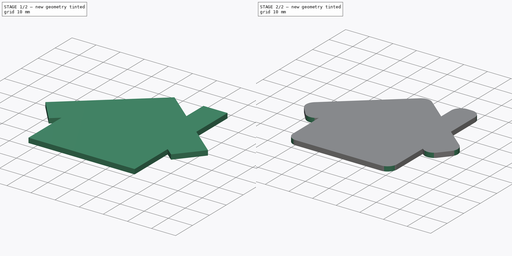
[diagram: build sequence overview — one tinted view per stage of 2, left to right]
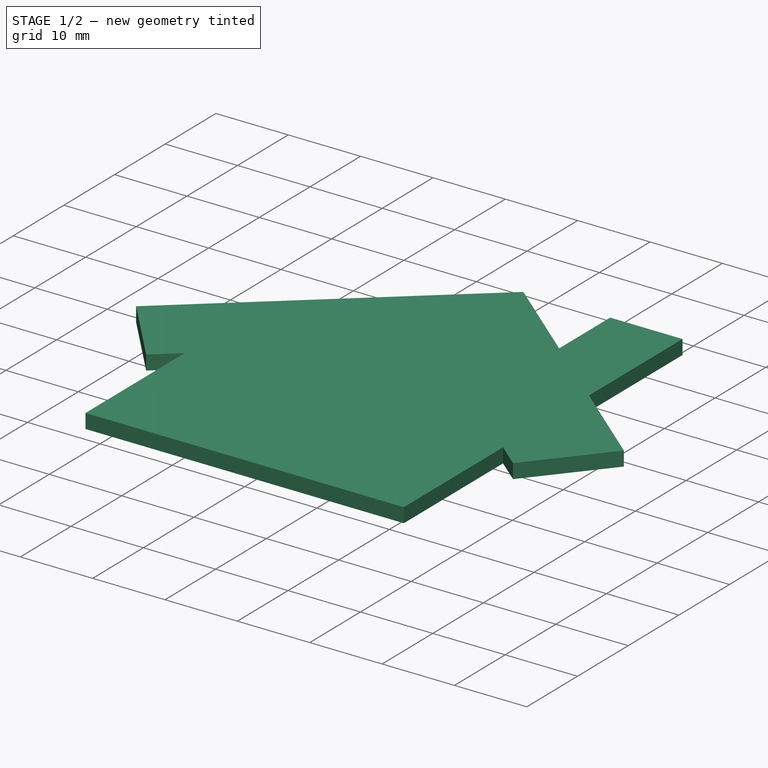
[diagram: stage 1 of 2 — iso view after this stage's code; geometry added in this stage tinted green]
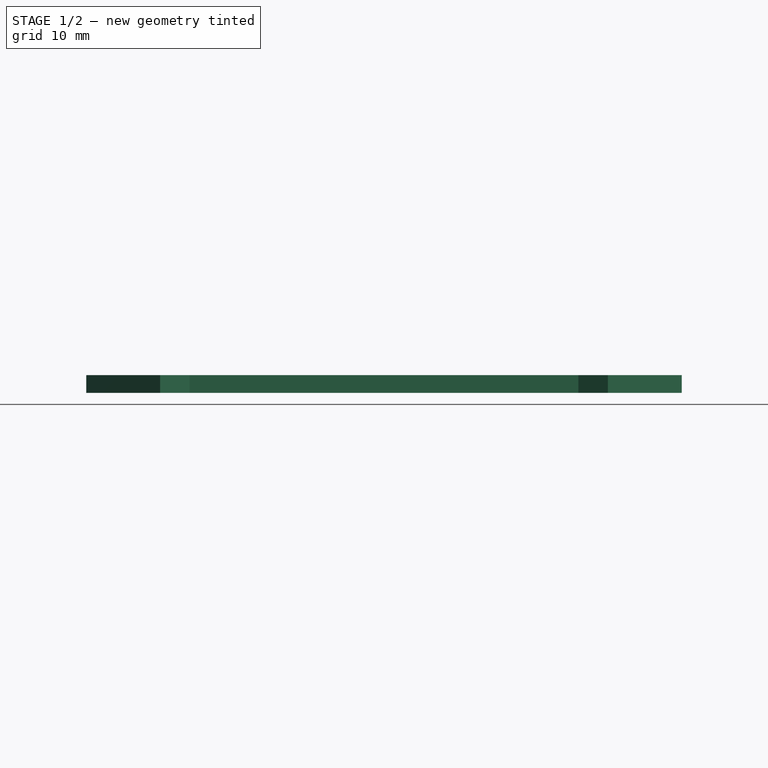
[diagram: stage 1 of 2 — front view after this stage's code; geometry added in this stage tinted green]
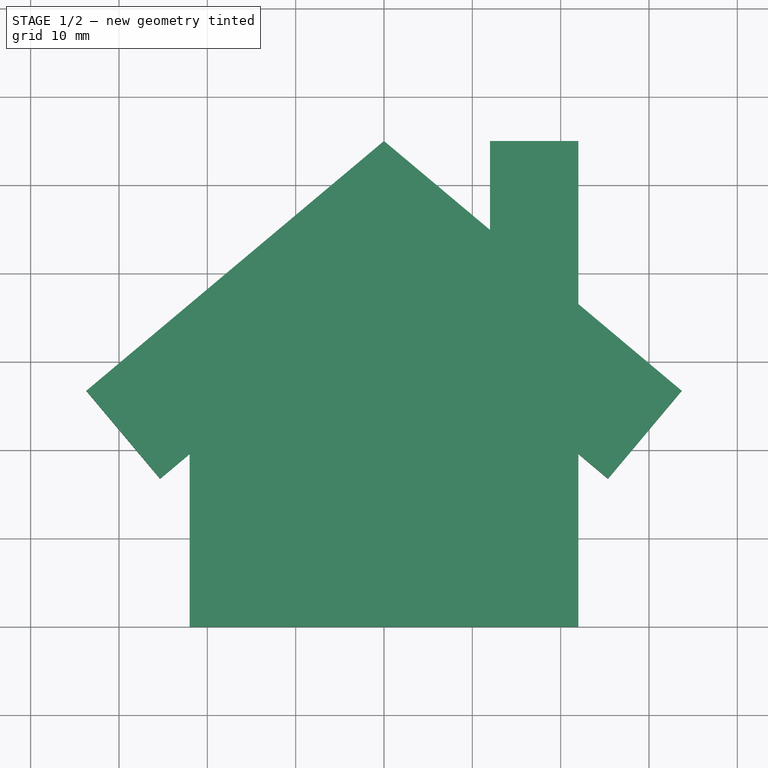
[diagram: stage 1 of 2 — top view after this stage's code; geometry added in this stage tinted green]
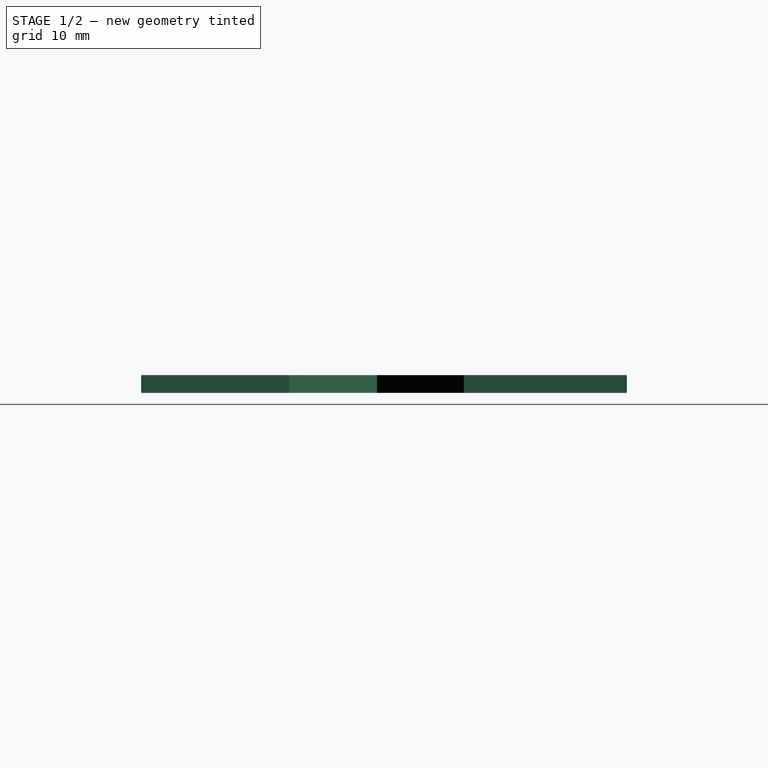
[diagram: stage 1 of 2 — right view after this stage's code; geometry added in this stage tinted green]
FCSTD DOCUMENT  (FreeCAD 0.20R29603 (Git))
Label: house-keychain
License: All rights reserved
LicenseURL: http://en.wikipedia.org/wiki/All_rights_reserved
objects: Sketcher::SketchObject×1, PartDesign::Pad×1, PartDesign::Fillet×1, PartDesign::Body×1
note: 6 computed .brp shape members not serialized (recipe doc carries the construction recipe); baked Part::Feature solids carry a one-line shape summary decoded from their .brp

FEATURE [Sketcher::SketchObject] Sketch
  FullyConstrained = true
  MapMode = 5
  Support = -> [XY_Plane]
  sketch-geometry (13):
    g0: LineSegment StartX=-22 StartY=0 StartZ=0 EndX=22 EndY=0 EndZ=0
    g1: LineSegment StartX=22 StartY=0 StartZ=0 EndX=22 EndY=19.5695 EndZ=0
    g2: LineSegment StartX=0 StartY=55 StartZ=0 EndX=-33.706 EndY=26.7173 EndZ=0
    g3: LineSegment StartX=-22 StartY=19.5695 StartZ=0 EndX=-22 EndY=0 EndZ=0
    g4: LineSegment StartX=-33.706 StartY=26.7173 StartZ=0 EndX=-25.3497 EndY=16.7588 EndZ=0
    g5: LineSegment StartX=-25.3497 StartY=16.7588 StartZ=0 EndX=-22 EndY=19.5695 EndZ=0
    g6: LineSegment StartX=22 StartY=19.5695 StartZ=0 EndX=25.3497 EndY=16.7588 EndZ=0
    g7: LineSegment StartX=25.3497 StartY=16.7588 StartZ=0 EndX=33.706 EndY=26.7173 EndZ=0
    g8: LineSegment StartX=12 StartY=44.9308 StartZ=0 EndX=12 EndY=55 EndZ=0
    g9: LineSegment StartX=12 StartY=55 StartZ=0 EndX=22 EndY=55 EndZ=0
    g10: LineSegment StartX=22 StartY=55 StartZ=0 EndX=22 EndY=36.5398 EndZ=0
    g11: LineSegment StartX=0 StartY=55 StartZ=0 EndX=12 EndY=44.9308 EndZ=0
    g12: LineSegment StartX=22 StartY=36.5398 StartZ=0 EndX=33.706 EndY=26.7173 EndZ=0
  constraints (35):
    c: Coincident(g0,g1)
    c: PointOnObject(g2,g-2)
    c: Coincident(g3,g0)
    c: Symmetric(g2,g7,g-2)
    c: Symmetric(g0,g0,g-2)
    c: PointOnObject(g0,g-1)
    c: Distance(g0) = 44  'HouseWidth'
    c: Coincident(g2,g4)
    c: Coincident(g4,g5)
    c: Coincident(g5,g3)
    c: Parallel(g2,g5)
    c: Perpendicular(g2,g4)
    c: Coincident(g1,g6)
    c: Coincident(g6,g7)
    c: Symmetric(g4,g6,g-2)
    c: Angle(g-1,g2) = 0.698132  'RoofAngle'
    c: Distance(g2) = 44
    c: Symmetric(g3,g1,g-2)
    c: Distance(g4) = 13  'RoofThickness'
    c: DistanceY(g-1,g2) = 55  'HouseHeight'
    c: Coincident(g8,g9)
    c: Horizontal(g9)
    c: Coincident(g9,g10)
    c: Coincident(g11,g2)
    c: Coincident(g11,g8)
    c: Coincident(g12,g10)
    c: Coincident(g12,g7)
    c: Parallel(g11,g12)
    c: Parallel(g10,g8)
    c: Parallel(g8,g-2)
    c: Parallel(g-2,g1)
    c: Angle(g12,g-1) = 0.698132
    c: Distance(g9) = 10  'ChimneyWidth'
    c: DistanceX(g-1,g10) = 22
    c: DistanceY(g-1,g9) = 55  'ChimneyHeight'
FEATURE [PartDesign::Pad] Pad
  Direction = (0,0,1)
  Length = 2
  Length2 = 10
  Profile = -> Sketch
  ReferenceAxis = -> Sketch [N_Axis]
  Type = 0
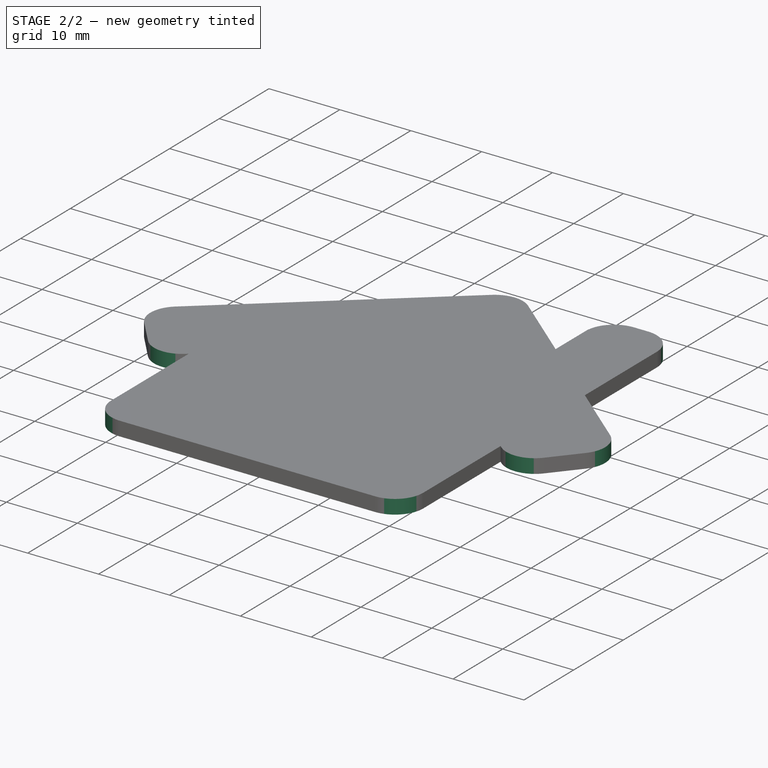
[diagram: stage 2 of 2 — iso view after this stage's code; geometry added in this stage tinted green]
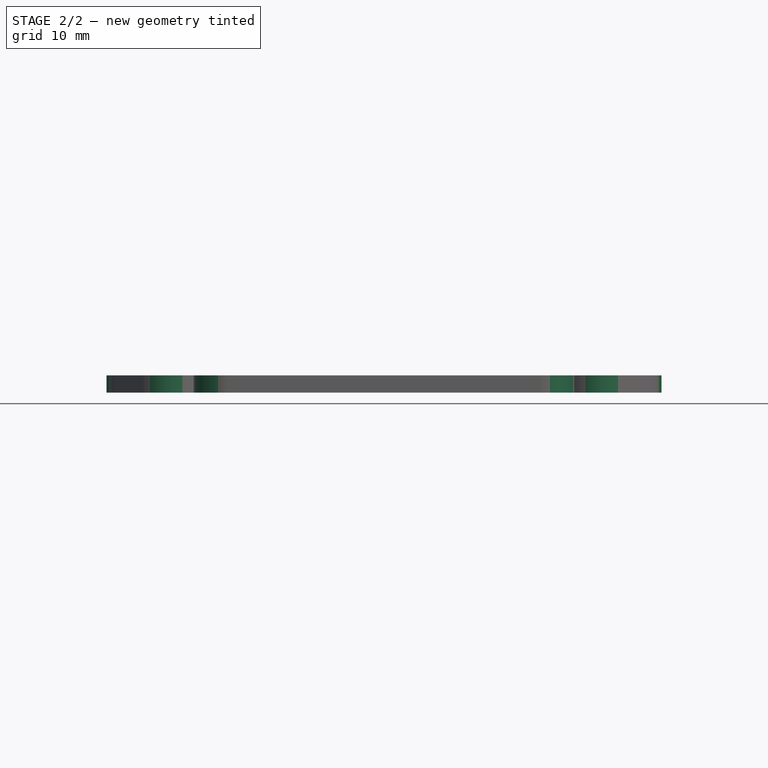
[diagram: stage 2 of 2 — front view after this stage's code; geometry added in this stage tinted green]
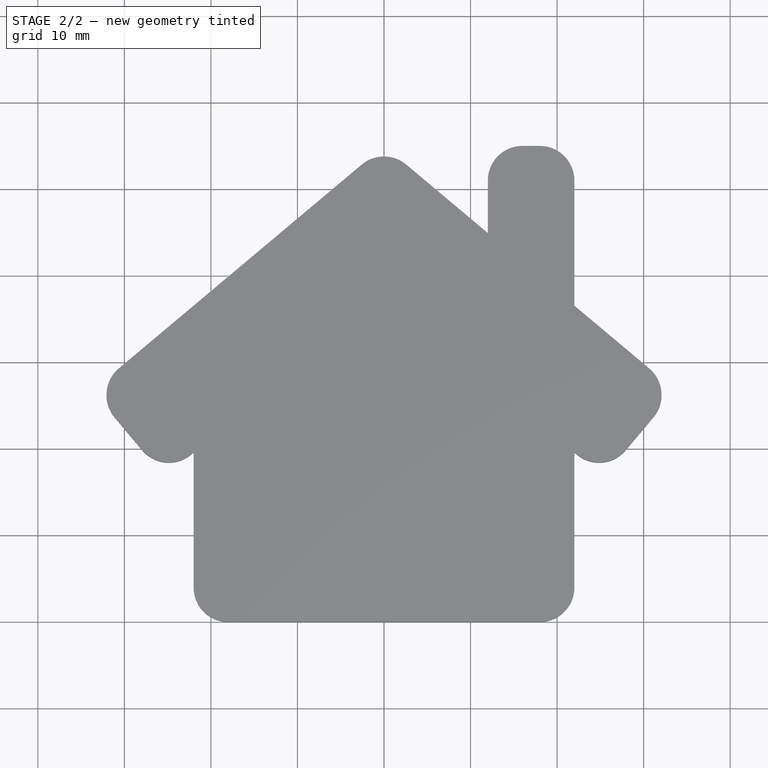
[diagram: stage 2 of 2 — top view after this stage's code; geometry added in this stage tinted green]
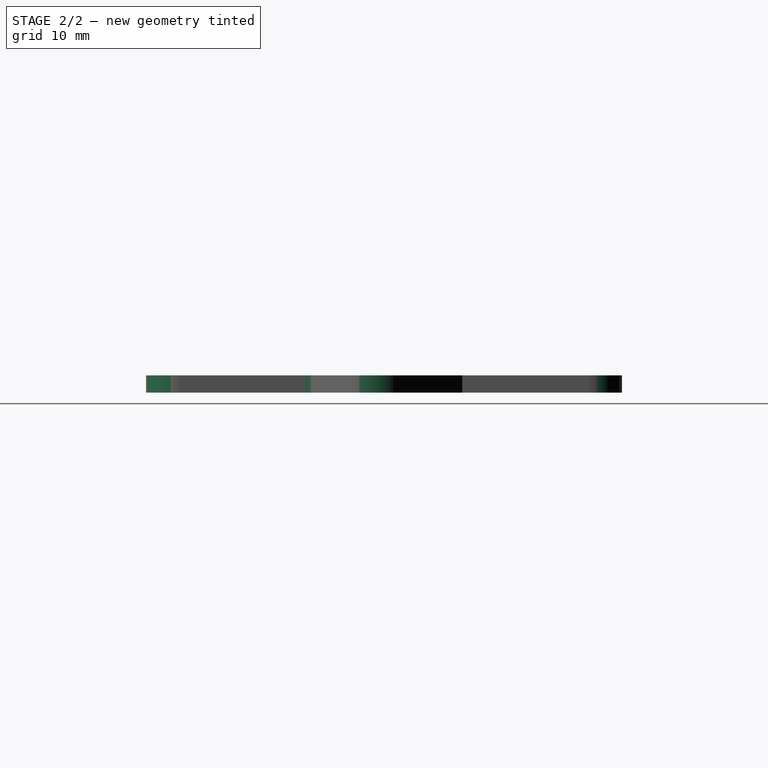
[diagram: stage 2 of 2 — right view after this stage's code; geometry added in this stage tinted green]
FEATURE [PartDesign::Fillet] Fillet
  Base = -> Pad [Edge14,Edge20,Edge23,Edge32,Edge29,Edge1,Edge2,Edge5,Edge11]
  BaseFeature = -> Pad
  Radius = 4
  SupportTransform = false
  UseAllEdges = false
FEATURE [PartDesign::Body] Body  label="Base"
  Group = -> [Sketch,Pad,Fillet]
  Origin = -> Origin
  Tip = -> Fillet
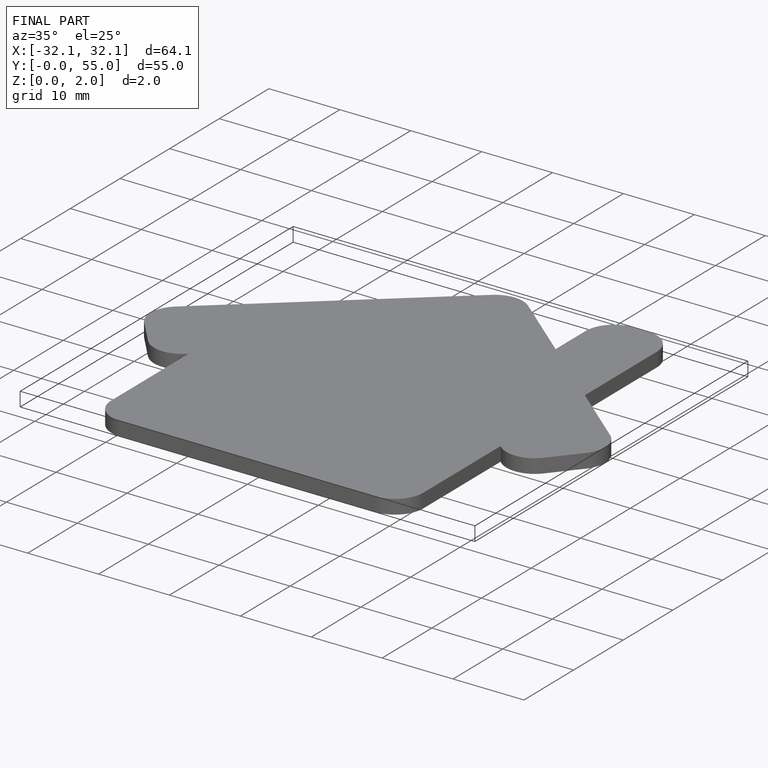
[diagram: finished part — iso view with bounding-box wireframe]
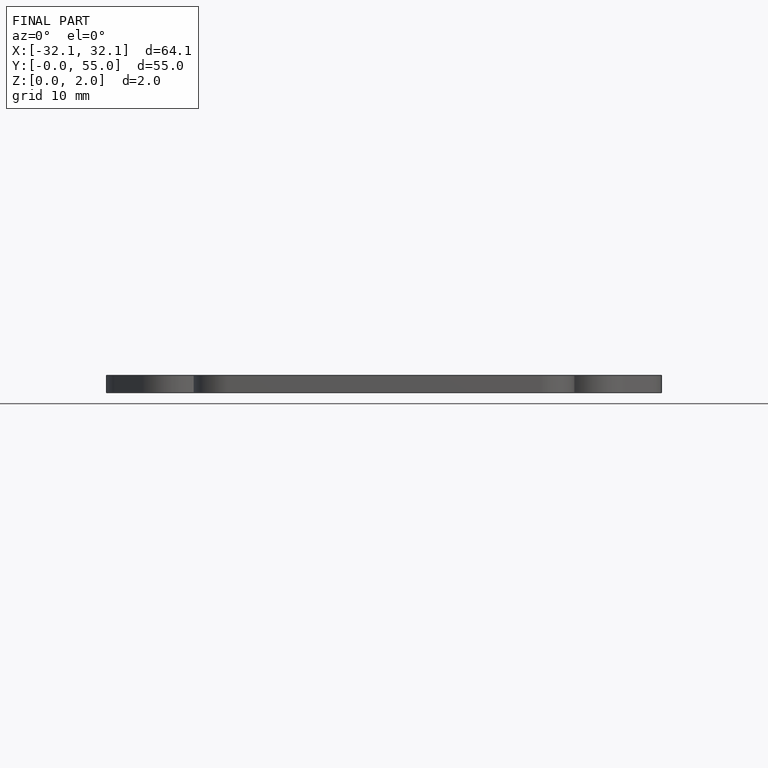
[diagram: finished part — front view with bounding-box wireframe]
